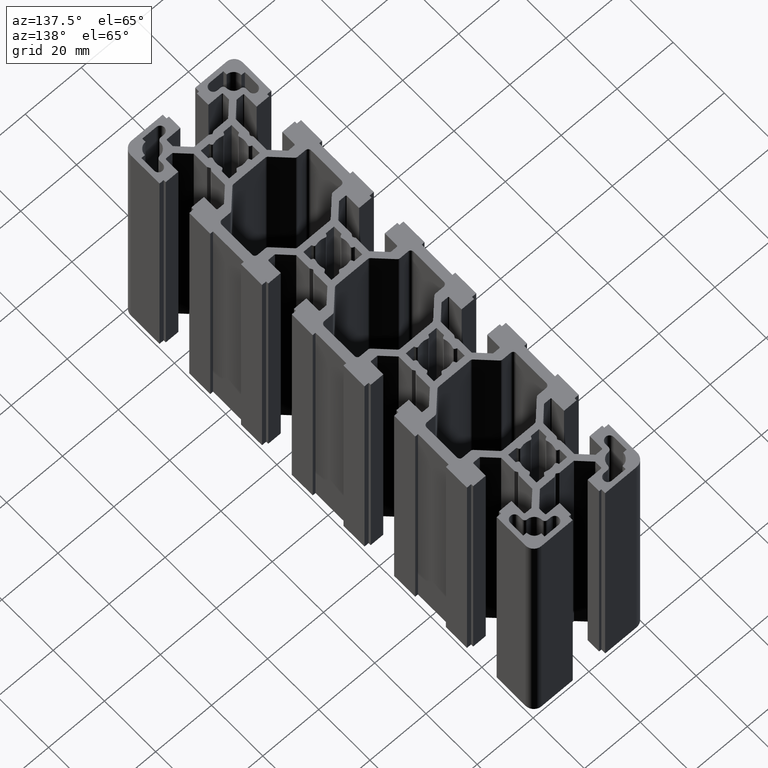
[diagram: clean part render]
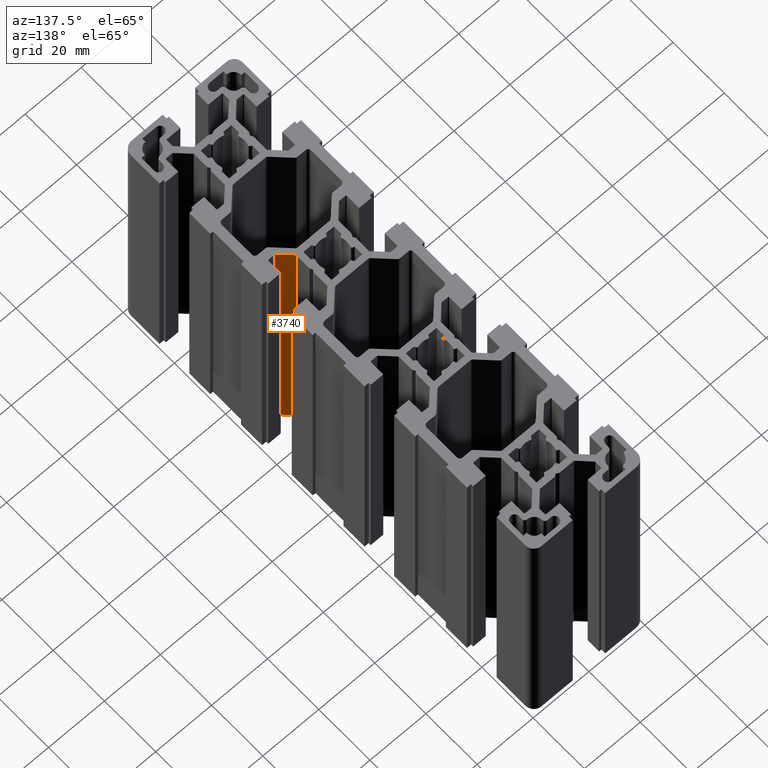
[diagram: same view with one face highlighted and labeled with its STEP entity id]
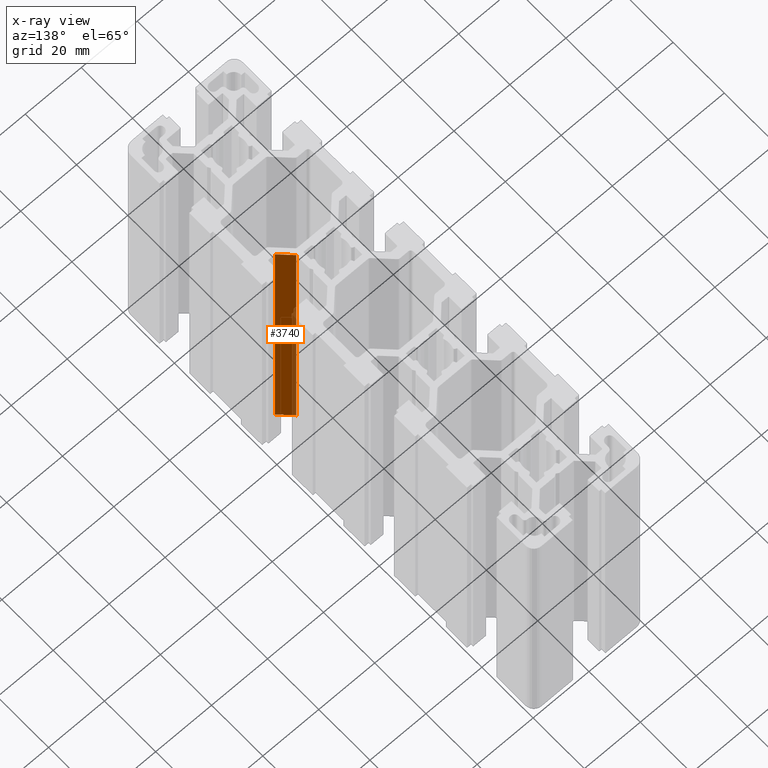
[diagram: x-ray of the same camera — body ghosted, the highlighted face saturated]
A machine part, auxiliary view. The second image highlights one B-rep face of the part: STEP entity #3740.
The next image is the same camera in x-ray: the body ghosted, the highlighted face saturated — about 14% of this face is hidden behind the body in this view.
In plain terms, the highlighted planar face has unit normal (-0.7071, -0.7071, 0).
Its self-contained STEP definition (entity closure, byte-faithful):
#701 = EDGE_CURVE ( 'NONE', #795, #702, #7369, .T. ) ;
#702 = VERTEX_POINT ( 'NONE', #7365 ) ;
#795 = VERTEX_POINT ( 'NONE', #7525 ) ;
#2242 = VERTEX_POINT ( 'NONE', #10119 ) ;
#2244 = EDGE_CURVE ( 'NONE', #2245, #2242, #10118, .T. ) ;
#2245 = VERTEX_POINT ( 'NONE', #10114 ) ;
#3719 = EDGE_CURVE ( 'NONE', #702, #2242, #12462, .T. ) ;
#3720 = ORIENTED_EDGE ( 'NONE', *, *, #701, .F. ) ;
#3721 = ORIENTED_EDGE ( 'NONE', *, *, #3737, .T. ) ;
#3737 = EDGE_CURVE ( 'NONE', #795, #2245, #12436, .T. ) ;
#3740 = ADVANCED_FACE ( 'NONE', ( #12432 ), #12430, .F. ) ;
#3741 = EDGE_LOOP ( 'NONE', ( #3742, #3743, #3720, #3721 ) ) ;
#3742 = ORIENTED_EDGE ( 'NONE', *, *, #2244, .T. ) ;
#3743 = ORIENTED_EDGE ( 'NONE', *, *, #3719, .F. ) ;
#7365 = CARTESIAN_POINT ( 'NONE',  ( 7.499999999999994700, -26.08578805923459100, 100.0000000000000000 ) ) ;
#7366 = DIRECTION ( 'NONE',  ( -0.7071067386592240200, 0.7071068237138684600, 0.0000000000000000000 ) ) ;
#7367 = VECTOR ( 'NONE', #7366, 1000.000000000000100 ) ;
#7368 = CARTESIAN_POINT ( 'NONE',  ( 11.46421337127686100, -30.05000190734860200, 100.0000000000000000 ) ) ;
#7369 = LINE ( 'NONE', #7368, #7367 ) ;
#7525 = CARTESIAN_POINT ( 'NONE',  ( 11.46421337127686100, -30.05000190734860200, 100.0000000000000000 ) ) ;
#10114 = CARTESIAN_POINT ( 'NONE',  ( 11.46421337127686100, -30.05000190734860200, 0.0000000000000000000 ) ) ;
#10115 = DIRECTION ( 'NONE',  ( -0.7071067386592240200, 0.7071068237138684600, 0.0000000000000000000 ) ) ;
#10116 = VECTOR ( 'NONE', #10115, 1000.000000000000100 ) ;
#10117 = CARTESIAN_POINT ( 'NONE',  ( 11.46421337127686100, -30.05000190734860200, 0.0000000000000000000 ) ) ;
#10118 = LINE ( 'NONE', #10117, #10116 ) ;
#10119 = CARTESIAN_POINT ( 'NONE',  ( 7.499999999999994700, -26.08578805923459100, 0.0000000000000000000 ) ) ;
#11639 = AXIS2_PLACEMENT_3D ( 'NONE', #11906, #12169, #12496 ) ;
#11906 = CARTESIAN_POINT ( 'NONE',  ( 11.46421337127686100, -30.05000190734860200, 100.0000000000000000 ) ) ;
#12169 = DIRECTION ( 'NONE',  ( -0.7071068237138684600, -0.7071067386592241300, 0.0000000000000000000 ) ) ;
#12430 = PLANE ( 'NONE',  #11639 ) ;
#12432 = FACE_OUTER_BOUND ( 'NONE', #3741, .T. ) ;
#12433 = DIRECTION ( 'NONE',  ( 0.0000000000000000000, 0.0000000000000000000, -1.000000000000000000 ) ) ;
#12434 = VECTOR ( 'NONE', #12433, 1000.000000000000000 ) ;
#12435 = CARTESIAN_POINT ( 'NONE',  ( 11.46421337127686100, -30.05000190734860200, 100.0000000000000000 ) ) ;
#12436 = LINE ( 'NONE', #12435, #12434 ) ;
#12459 = DIRECTION ( 'NONE',  ( 0.0000000000000000000, 0.0000000000000000000, -1.000000000000000000 ) ) ;
#12460 = VECTOR ( 'NONE', #12459, 1000.000000000000000 ) ;
#12461 = CARTESIAN_POINT ( 'NONE',  ( 7.499999999999994700, -26.08578805923459100, 100.0000000000000000 ) ) ;
#12462 = LINE ( 'NONE', #12461, #12460 ) ;
#12496 = DIRECTION ( 'NONE',  ( 0.7071067386592240200, -0.7071068237138683500, 0.0000000000000000000 ) ) ;